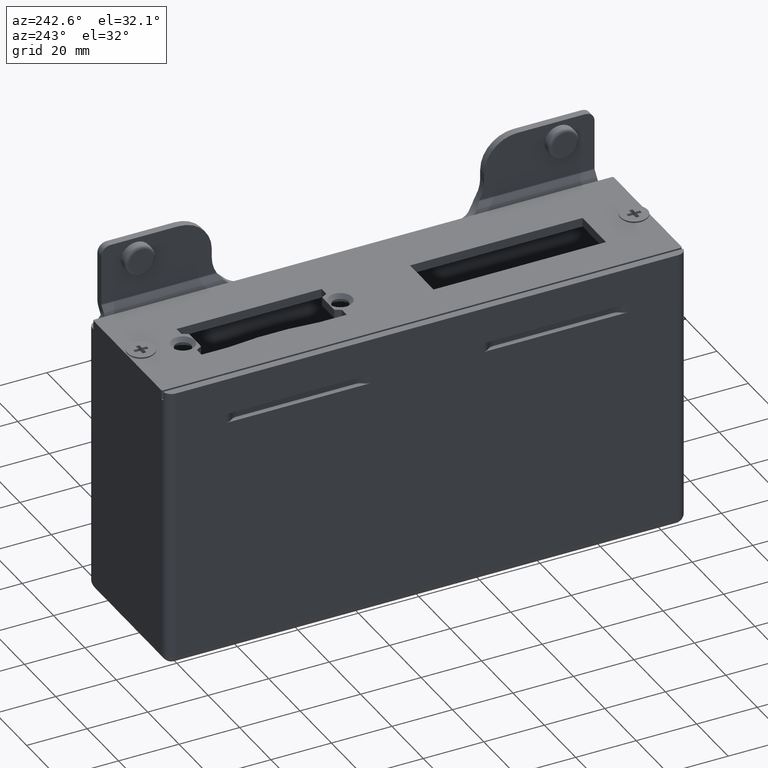
[diagram: clean part render]
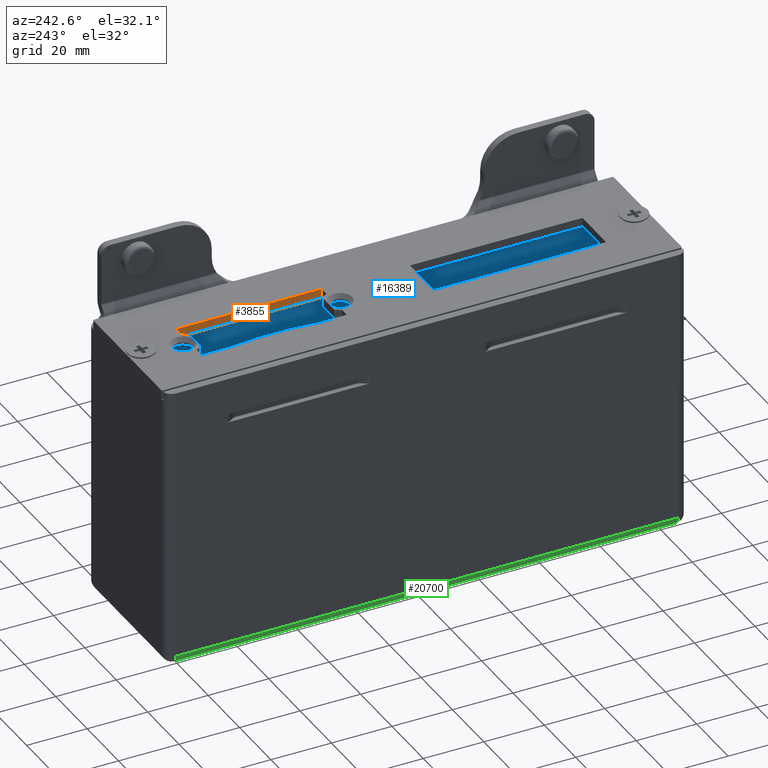
[diagram: same view with three faces highlighted in distinct colors, each labeled with its STEP entity id]
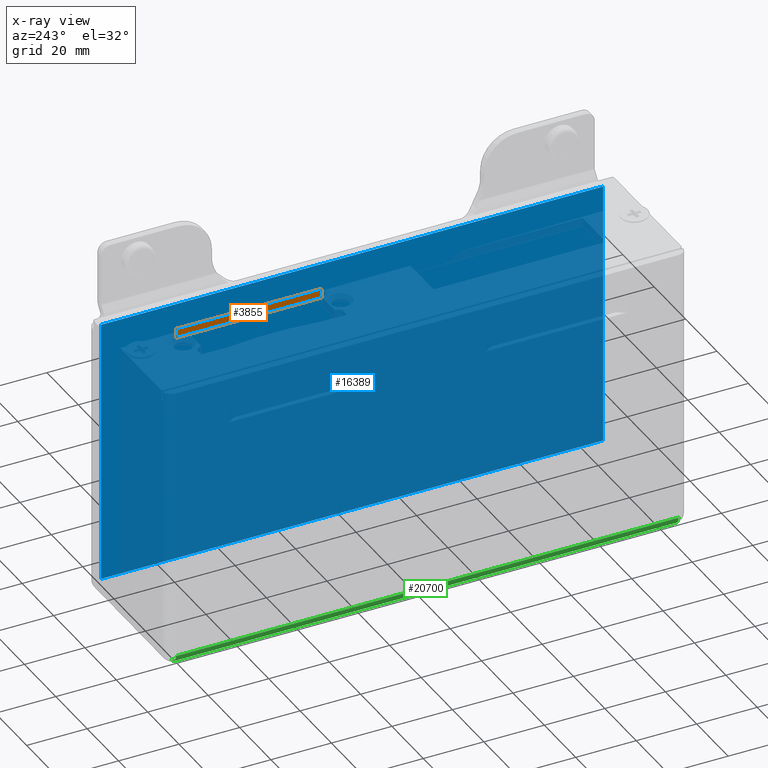
[diagram: x-ray of the same camera — body ghosted, the three highlighted faces saturated]
A machine part, auxiliary view with three faces highlighted in distinct colors.
The next image is the same camera in x-ray (body ghosted, the three faces saturated) — at least one of them is partly hidden behind the body in this view.
Their STEP definitions:

[orange] entity #3855 — the highlighted planar face has unit normal (-1, -0, 0).
#101 = VECTOR ( 'NONE', #24761, 1000.000000000000000 ) ;
#1580 = VERTEX_POINT ( 'NONE', #10476 ) ;
#3855 = ADVANCED_FACE ( 'NONE', ( #33590 ), #21049, .T. ) ;
#5233 = CARTESIAN_POINT ( 'NONE',  ( 6.300000000000001599, 27.49999999999998934, 3.000000000000000000 ) ) ;
#6494 = DIRECTION ( 'NONE',  ( -0.000000000000000000, -0.000000000000000000, -1.000000000000000000 ) ) ;
#6944 = EDGE_CURVE ( 'NONE', #13350, #10186, #28271, .T. ) ;
#8426 = AXIS2_PLACEMENT_3D ( 'NONE', #26551, #35175, #32611 ) ;
#10186 = VERTEX_POINT ( 'NONE', #10947 ) ;
#10476 = CARTESIAN_POINT ( 'NONE',  ( 6.299999999999996270, 66.50000000000002842, 0.000000000000000000 ) ) ;
#10497 = ORIENTED_EDGE ( 'NONE', *, *, #6944, .F. ) ;
#10947 = CARTESIAN_POINT ( 'NONE',  ( 6.299999999999996270, 18.50000000000001421, 0.000000000000000000 ) ) ;
#13350 = VERTEX_POINT ( 'NONE', #16744 ) ;
#14368 = EDGE_CURVE ( 'NONE', #10186, #1580, #23233, .T. ) ;
#14429 = EDGE_LOOP ( 'NONE', ( #15017, #10497, #23702, #15821 ) ) ;
#15017 = ORIENTED_EDGE ( 'NONE', *, *, #14368, .F. ) ;
#15821 = ORIENTED_EDGE ( 'NONE', *, *, #19082, .T. ) ;
#15887 = EDGE_CURVE ( 'NONE', #13350, #17106, #16721, .T. ) ;
#16721 = LINE ( 'NONE', #5233, #101 ) ;
#16744 = CARTESIAN_POINT ( 'NONE',  ( 6.299999999999996270, 18.50000000000001421, 3.000000000000000000 ) ) ;
#17106 = VERTEX_POINT ( 'NONE', #17323 ) ;
#17323 = CARTESIAN_POINT ( 'NONE',  ( 6.299999999999996270, 66.50000000000002842, 3.000000000000000000 ) ) ;
#19082 = EDGE_CURVE ( 'NONE', #17106, #1580, #30970, .T. ) ;
#19099 = DIRECTION ( 'NONE',  ( -5.782411586589356653E-16, 1.000000000000000000, -0.000000000000000000 ) ) ;
#20266 = CARTESIAN_POINT ( 'NONE',  ( 6.299999999999996270, 66.50000000000002842, 3.000000000000000000 ) ) ;
#21049 = PLANE ( 'NONE',  #8426 ) ;
#21559 = CARTESIAN_POINT ( 'NONE',  ( 6.299999999999996270, 66.50000000000002842, 0.000000000000000000 ) ) ;
#23233 = LINE ( 'NONE', #21559, #34564 ) ;
#23702 = ORIENTED_EDGE ( 'NONE', *, *, #15887, .T. ) ;
#24761 = DIRECTION ( 'NONE',  ( 5.782411586589371444E-16, 1.000000000000000000, -0.000000000000000000 ) ) ;
#25249 = CARTESIAN_POINT ( 'NONE',  ( 6.299999999999996270, 18.50000000000001421, 3.000000000000000000 ) ) ;
#26551 = CARTESIAN_POINT ( 'NONE',  ( 6.299999999999996270, 66.50000000000002842, 3.000000000000000000 ) ) ;
#28076 = DIRECTION ( 'NONE',  ( -0.000000000000000000, -0.000000000000000000, -1.000000000000000000 ) ) ;
#28271 = LINE ( 'NONE', #25249, #30394 ) ;
#30104 = VECTOR ( 'NONE', #6494, 1000.000000000000000 ) ;
#30394 = VECTOR ( 'NONE', #28076, 1000.000000000000000 ) ;
#30970 = LINE ( 'NONE', #20266, #30104 ) ;
#32611 = DIRECTION ( 'NONE',  ( 5.782411586589356653E-16, -1.000000000000000000, 0.000000000000000000 ) ) ;
#33590 = FACE_OUTER_BOUND ( 'NONE', #14429, .T. ) ;
#34564 = VECTOR ( 'NONE', #19099, 1000.000000000000000 ) ;
#35175 = DIRECTION ( 'NONE',  ( -1.000000000000000000, -5.782411586589356653E-16, 0.000000000000000000 ) ) ;

[blue] entity #16389 — the highlighted planar face has unit normal (-1, -0, 0).
#178 = PLANE ( 'NONE',  #30041 ) ;
#899 = VECTOR ( 'NONE', #18182, 1000.000000000000000 ) ;
#977 = VERTEX_POINT ( 'NONE', #17942 ) ;
#1124 = CARTESIAN_POINT ( 'NONE',  ( 22.75000000000000711, 34.00000000000000000, 45.50000000000000000 ) ) ;
#1448 = VECTOR ( 'NONE', #11862, 1000.000000000000000 ) ;
#1781 = CARTESIAN_POINT ( 'NONE',  ( 22.75000000000001776, -82.99999999999997158, -42.49999999999999289 ) ) ;
#2317 = ORIENTED_EDGE ( 'NONE', *, *, #13548, .F. ) ;
#4393 = CARTESIAN_POINT ( 'NONE',  ( 22.74999999999999645, 86.00000000000000000, -42.49999999999999289 ) ) ;
#4933 = EDGE_CURVE ( 'NONE', #31163, #977, #27887, .T. ) ;
#7499 = VERTEX_POINT ( 'NONE', #12173 ) ;
#7502 = ORIENTED_EDGE ( 'NONE', *, *, #4933, .F. ) ;
#7794 = DIRECTION ( 'NONE',  ( -0.000000000000000000, -0.000000000000000000, -1.000000000000000000 ) ) ;
#8129 = VERTEX_POINT ( 'NONE', #1781 ) ;
#8138 = CARTESIAN_POINT ( 'NONE',  ( 22.75000000000000711, 81.50000000000000000, 45.50000000000000000 ) ) ;
#8244 = VECTOR ( 'NONE', #11360, 1000.000000000000000 ) ;
#8349 = LINE ( 'NONE', #4393, #899 ) ;
#8574 = ORIENTED_EDGE ( 'NONE', *, *, #25411, .F. ) ;
#8625 = DIRECTION ( 'NONE',  ( -0.000000000000000000, -1.000000000000000000, -0.000000000000000000 ) ) ;
#9516 = EDGE_CURVE ( 'NONE', #977, #8129, #33903, .T. ) ;
#11360 = DIRECTION ( 'NONE',  ( -0.000000000000000000, -1.000000000000000000, -0.000000000000000000 ) ) ;
#11383 = LINE ( 'NONE', #8138, #14864 ) ;
#11429 = CARTESIAN_POINT ( 'NONE',  ( 22.74999999999999645, 86.00000000000000000, 45.50000000000000000 ) ) ;
#11862 = DIRECTION ( 'NONE',  ( -0.000000000000000000, -1.000000000000000000, -0.000000000000000000 ) ) ;
#12173 = CARTESIAN_POINT ( 'NONE',  ( 22.74999999999999645, 83.00000000000000000, -42.49999999999999289 ) ) ;
#12580 = CARTESIAN_POINT ( 'NONE',  ( 22.75000000000000711, -34.00000000000000000, 45.50000000000000000 ) ) ;
#13063 = CARTESIAN_POINT ( 'NONE',  ( 22.75000000000001776, -82.99999999999997158, 45.50000000000000000 ) ) ;
#13219 = CARTESIAN_POINT ( 'NONE',  ( 22.74999999999999645, 83.00000000000000000, 45.50000000000000000 ) ) ;
#13548 = EDGE_CURVE ( 'NONE', #22702, #31163, #16749, .T. ) ;
#14864 = VECTOR ( 'NONE', #8625, 1000.000000000000000 ) ;
#16389 = ADVANCED_FACE ( 'NONE', ( #22384 ), #178, .T. ) ;
#16749 = LINE ( 'NONE', #28225, #1448 ) ;
#17504 = DIRECTION ( 'NONE',  ( 1.210272192541958616E-16, -1.000000000000000000, 0.000000000000000000 ) ) ;
#17909 = EDGE_CURVE ( 'NONE', #8129, #7499, #8349, .T. ) ;
#17942 = CARTESIAN_POINT ( 'NONE',  ( 22.75000000000000711, -82.99999999999997158, 45.50000000000000000 ) ) ;
#18182 = DIRECTION ( 'NONE',  ( -1.210272192541958616E-16, 1.000000000000000000, -0.000000000000000000 ) ) ;
#18558 = EDGE_CURVE ( 'NONE', #21000, #22702, #11383, .T. ) ;
#19062 = VECTOR ( 'NONE', #7794, 1000.000000000000000 ) ;
#19065 = VECTOR ( 'NONE', #26311, 1000.000000000000000 ) ;
#19394 = EDGE_LOOP ( 'NONE', ( #34547, #7502, #2317, #21346, #8574, #31985 ) ) ;
#21000 = VERTEX_POINT ( 'NONE', #13219 ) ;
#21346 = ORIENTED_EDGE ( 'NONE', *, *, #18558, .F. ) ;
#22384 = FACE_OUTER_BOUND ( 'NONE', #19394, .T. ) ;
#22702 = VERTEX_POINT ( 'NONE', #1124 ) ;
#22782 = CARTESIAN_POINT ( 'NONE',  ( 22.75000000000000711, 81.50000000000000000, 45.50000000000000000 ) ) ;
#25411 = EDGE_CURVE ( 'NONE', #7499, #21000, #36077, .T. ) ;
#25819 = CARTESIAN_POINT ( 'NONE',  ( 22.74999999999999645, 83.00000000000000000, 45.50000000000000000 ) ) ;
#26311 = DIRECTION ( 'NONE',  ( 0.000000000000000000, 0.000000000000000000, 1.000000000000000000 ) ) ;
#27887 = LINE ( 'NONE', #22782, #8244 ) ;
#28149 = DIRECTION ( 'NONE',  ( -1.000000000000000000, -1.210272192541958616E-16, 0.000000000000000000 ) ) ;
#28225 = CARTESIAN_POINT ( 'NONE',  ( 22.75000000000000711, 81.50000000000000000, 45.50000000000000000 ) ) ;
#30041 = AXIS2_PLACEMENT_3D ( 'NONE', #11429, #28149, #17504 ) ;
#31163 = VERTEX_POINT ( 'NONE', #12580 ) ;
#31985 = ORIENTED_EDGE ( 'NONE', *, *, #17909, .F. ) ;
#33903 = LINE ( 'NONE', #13063, #19062 ) ;
#34547 = ORIENTED_EDGE ( 'NONE', *, *, #9516, .F. ) ;
#36077 = LINE ( 'NONE', #25819, #19065 ) ;

[green] entity #20700 — the highlighted cylindrical surface (edge-blend (fillet) strip) has radius 3 mm, axis along (0, -1, 0).
#4579 = CARTESIAN_POINT ( 'NONE',  ( -22.24999999999998934, -82.99999999999997158, -45.50000000000000000 ) ) ;
#4941 = ORIENTED_EDGE ( 'NONE', *, *, #23534, .F. ) ;
#5330 = DIRECTION ( 'NONE',  ( -1.210272192541958616E-16, 1.000000000000000000, -0.000000000000000000 ) ) ;
#5455 = CARTESIAN_POINT ( 'NONE',  ( -22.25000000000000000, -2.692855628405857790E-15, -45.50000000000000000 ) ) ;
#6066 = AXIS2_PLACEMENT_3D ( 'NONE', #10083, #12307, #9735 ) ;
#7254 = VERTEX_POINT ( 'NONE', #22169 ) ;
#7866 = CARTESIAN_POINT ( 'NONE',  ( -22.25000000000001066, 86.00000000000000000, -42.49999999999999289 ) ) ;
#7983 = DIRECTION ( 'NONE',  ( 1.210272192541958616E-16, -1.000000000000000000, 0.000000000000000000 ) ) ;
#9074 = CIRCLE ( 'NONE', #6066, 3.000000000000002665 ) ;
#9735 = DIRECTION ( 'NONE',  ( 0.000000000000000000, 0.000000000000000000, 1.000000000000000000 ) ) ;
#9977 = EDGE_CURVE ( 'NONE', #27253, #7254, #29099, .T. ) ;
#10083 = CARTESIAN_POINT ( 'NONE',  ( -22.25000000000001066, 83.00000000000000000, -42.49999999999999289 ) ) ;
#12307 = DIRECTION ( 'NONE',  ( 0.000000000000000000, 1.000000000000000000, 0.000000000000000000 ) ) ;
#13486 = DIRECTION ( 'NONE',  ( 1.000000000000000000, 0.000000000000000000, 0.000000000000000000 ) ) ;
#13598 = DIRECTION ( 'NONE',  ( 0.000000000000000000, 1.000000000000000000, 0.000000000000000000 ) ) ;
#14286 = VERTEX_POINT ( 'NONE', #15350 ) ;
#14510 = DIRECTION ( 'NONE',  ( 1.210272192541958616E-16, -1.000000000000000000, 0.000000000000000000 ) ) ;
#15304 = CARTESIAN_POINT ( 'NONE',  ( -22.25000000000001066, 83.00000000000000000, -45.50000000000000000 ) ) ;
#15350 = CARTESIAN_POINT ( 'NONE',  ( -25.25000000000000711, 83.00000000000000000, -42.49999999999999289 ) ) ;
#16018 = EDGE_CURVE ( 'NONE', #14286, #7254, #33699, .T. ) ;
#18970 = AXIS2_PLACEMENT_3D ( 'NONE', #30283, #13598, #21873 ) ;
#20700 = ADVANCED_FACE ( 'NONE', ( #32122 ), #24709, .T. ) ;
#21873 = DIRECTION ( 'NONE',  ( 0.000000000000000000, 0.000000000000000000, -1.000000000000000000 ) ) ;
#22169 = CARTESIAN_POINT ( 'NONE',  ( -25.24999999999998934, -82.99999999999997158, -42.49999999999999289 ) ) ;
#23534 = EDGE_CURVE ( 'NONE', #34211, #14286, #9074, .T. ) ;
#23706 = ORIENTED_EDGE ( 'NONE', *, *, #16018, .F. ) ;
#24338 = ORIENTED_EDGE ( 'NONE', *, *, #9977, .T. ) ;
#24429 = EDGE_LOOP ( 'NONE', ( #24338, #23706, #4941, #28174 ) ) ;
#24709 = CYLINDRICAL_SURFACE ( 'NONE', #28263, 2.999999999999999112 ) ;
#26969 = EDGE_CURVE ( 'NONE', #27253, #34211, #35580, .T. ) ;
#27253 = VERTEX_POINT ( 'NONE', #4579 ) ;
#27777 = VECTOR ( 'NONE', #5330, 1000.000000000000000 ) ;
#28071 = VECTOR ( 'NONE', #14510, 1000.000000000000000 ) ;
#28174 = ORIENTED_EDGE ( 'NONE', *, *, #26969, .F. ) ;
#28196 = CARTESIAN_POINT ( 'NONE',  ( -25.25000000000000711, 86.00000000000000000, -42.49999999999999289 ) ) ;
#28263 = AXIS2_PLACEMENT_3D ( 'NONE', #7866, #7983, #13486 ) ;
#29099 = CIRCLE ( 'NONE', #18970, 3.000000000000002665 ) ;
#30283 = CARTESIAN_POINT ( 'NONE',  ( -22.24999999999998934, -82.99999999999997158, -42.49999999999999289 ) ) ;
#32122 = FACE_OUTER_BOUND ( 'NONE', #24429, .T. ) ;
#33699 = LINE ( 'NONE', #28196, #28071 ) ;
#34211 = VERTEX_POINT ( 'NONE', #15304 ) ;
#35580 = LINE ( 'NONE', #5455, #27777 ) ;